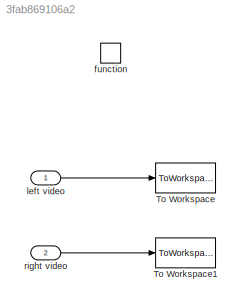
MODEL slx_3fab869106a2
KIND model
WORKSPACE source: MAT-file member
WORKSPACE ini_block_hpos = -0.4
BLOCK [ToWorkspace] To Workspace
  MaxDataPoints = inf
  Ports = [1]
  SampleTime = -1
  VariableName = video_left
BLOCK [ToWorkspace] To Workspace1
  MaxDataPoints = inf
  Ports = [1]
  SampleTime = -1
  VariableName = video_right
BLOCK [TriggerPort] function
  Ports = []
  StatesWhenEnabling = held
  TriggerType = function-call
BLOCK [Inport] left video
  IconDisplay = Port number
  OutDataTypeStr = uint8
  PortDimensions = [400 240 3]
  SamplingMode = Sample based
  SignalType = real
BLOCK [Inport] right video
  IconDisplay = Port number
  OutDataTypeStr = uint8
  Port = 2
  PortDimensions = [400 240 3]
  SamplingMode = Sample based
  SignalType = real
LINE left video:1 -> To Workspace:1
LINE right video:1 -> To Workspace1:1
